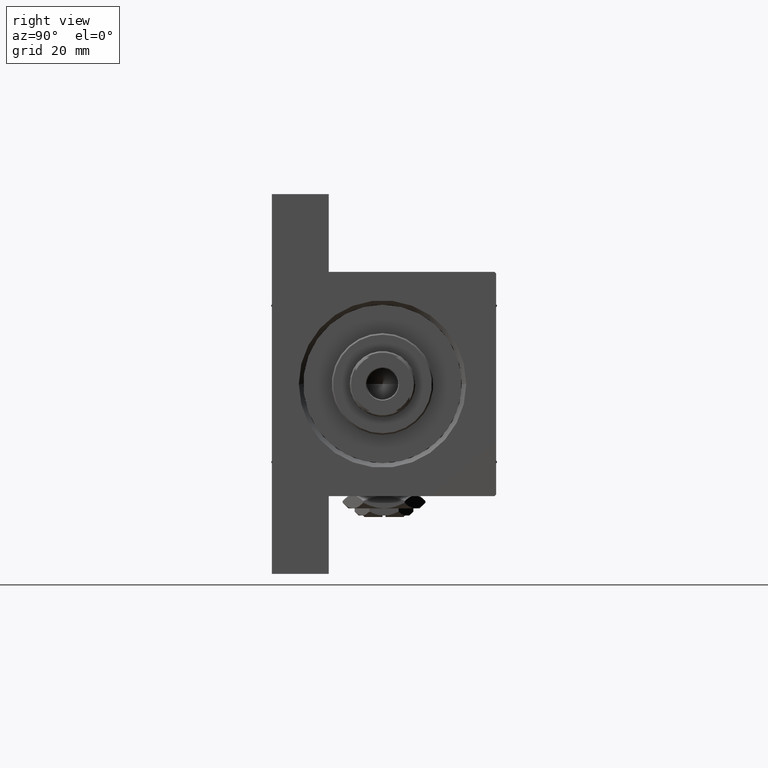
[diagram: clean part render]
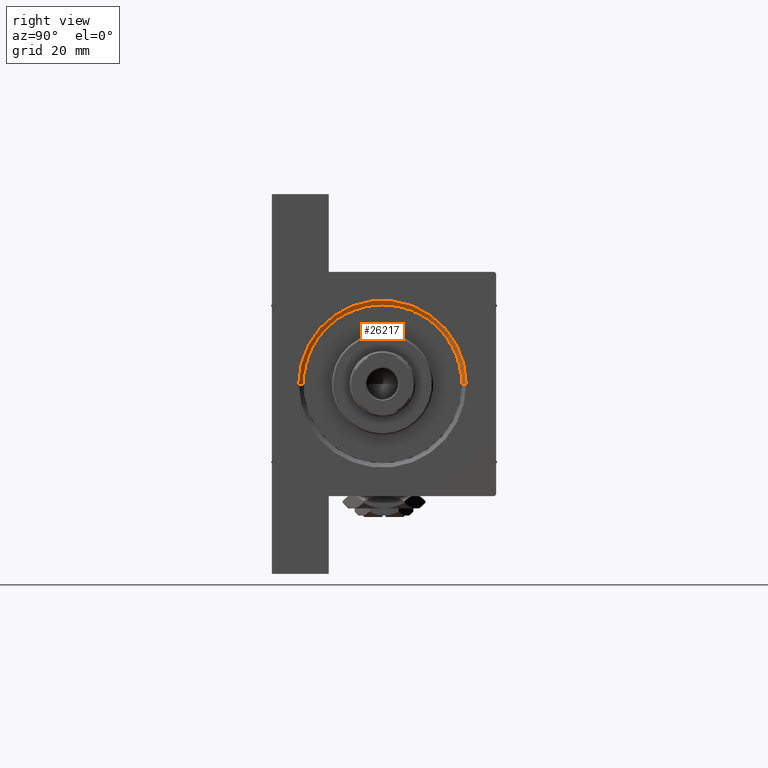
[diagram: same view with one face highlighted and labeled with its STEP entity id]
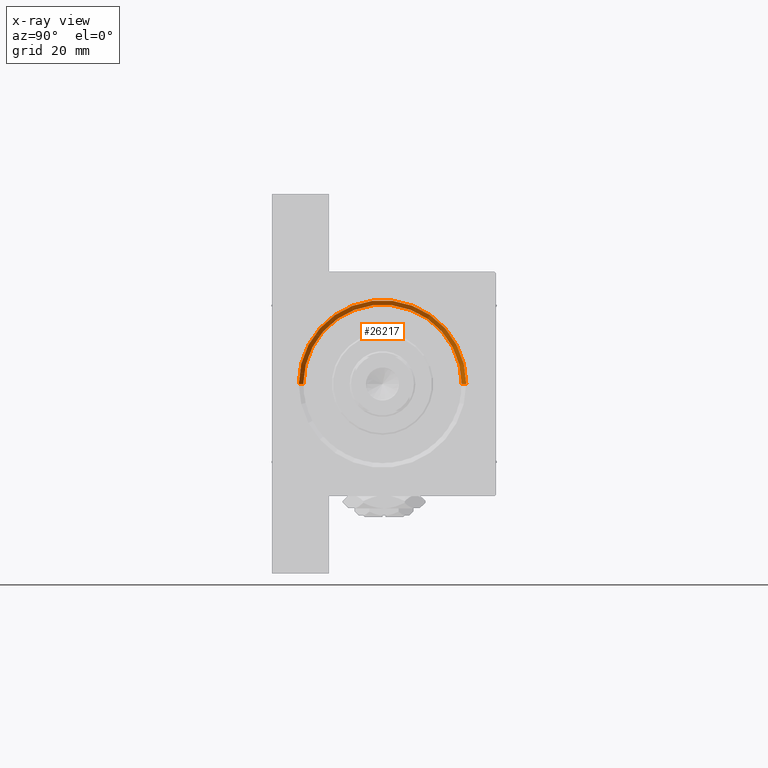
[diagram: x-ray of the same camera — body ghosted, the highlighted face saturated]
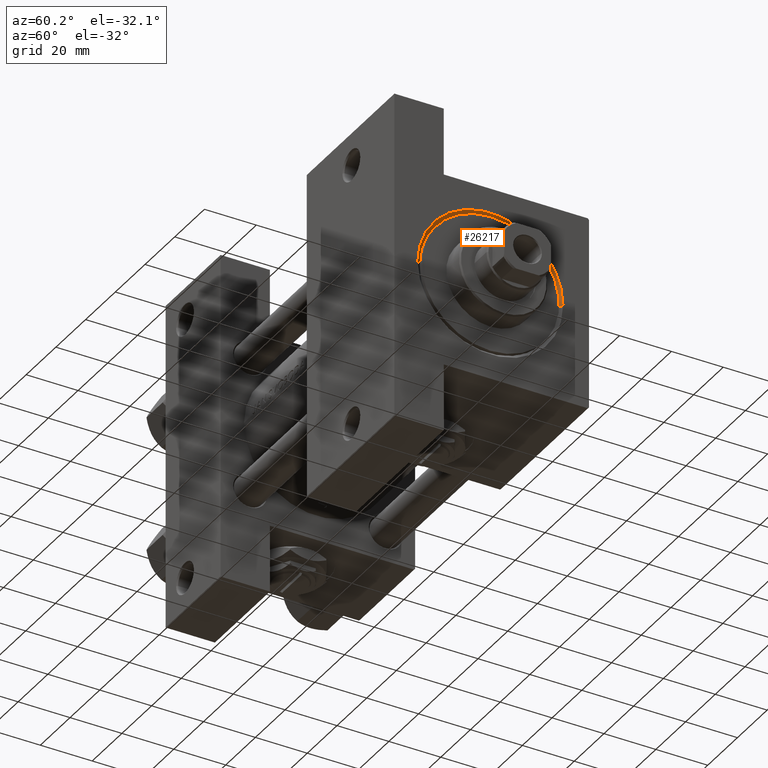
[diagram: same view with one face highlighted and labeled with its STEP entity id]
A machine part, right view. The second image highlights one B-rep face of the part: STEP entity #26217.
The next image is the same camera in x-ray: the body ghosted, the highlighted face saturated — about 0% of this face is hidden behind the body in this view.
A second angle (auxiliary view) of the same face is appended — the face is thin or edge-on in the first view.
In plain terms, the highlighted conical surface has half-angle 45 deg.
Its self-contained STEP definition (entity closure, byte-faithful):
#1871 = CARTESIAN_POINT ( 'NONE',  ( 152.5000000000000568, 0.000000000000000000, -0.5000000000000004441 ) ) ;
#3297 = CARTESIAN_POINT ( 'NONE',  ( 152.5000000000000568, 3.245314017740486554E-15, 26.00000000000000355 ) ) ;
#7060 = LINE ( 'NONE', #3297, #25974 ) ;
#7363 = VERTEX_POINT ( 'NONE', #33471 ) ;
#8380 = DIRECTION ( 'NONE',  ( -1.000000000000000000, -0.000000000000000000, 0.000000000000000000 ) ) ;
#10758 = CIRCLE ( 'NONE', #36372, 26.50000000000000355 ) ;
#11424 = DIRECTION ( 'NONE',  ( 0.7071067811865361374, 0.000000000000000000, -0.7071067811865588970 ) ) ;
#12431 = CONICAL_SURFACE ( 'NONE', #21245, 26.50000000000000355, 0.7853981633974644883 ) ;
#16637 = ORIENTED_EDGE ( 'NONE', *, *, #40904, .F. ) ;
#16805 = EDGE_CURVE ( 'NONE', #47914, #19608, #32203, .T. ) ;
#17811 = DIRECTION ( 'NONE',  ( 1.000000000000000000, 0.000000000000000000, 0.000000000000000000 ) ) ;
#17957 = CARTESIAN_POINT ( 'NONE',  ( 152.5000000000000568, 0.000000000000000000, -27.00000000000000355 ) ) ;
#19608 = VERTEX_POINT ( 'NONE', #43897 ) ;
#20567 = CARTESIAN_POINT ( 'NONE',  ( 152.5000000000000568, 0.000000000000000000, -0.5000000000000004441 ) ) ;
#20604 = EDGE_CURVE ( 'NONE', #20914, #7363, #10758, .T. ) ;
#20914 = VERTEX_POINT ( 'NONE', #45815 ) ;
#21245 = AXIS2_PLACEMENT_3D ( 'NONE', #20567, #31559, #35325 ) ;
#21830 = EDGE_CURVE ( 'NONE', #20914, #19608, #7060, .T. ) ;
#22213 = LINE ( 'NONE', #17957, #26528 ) ;
#23684 = CARTESIAN_POINT ( 'NONE',  ( 154.0000000000000000, 0.000000000000000000, -28.49999999999999645 ) ) ;
#24461 = ORIENTED_EDGE ( 'NONE', *, *, #16805, .F. ) ;
#25762 = ORIENTED_EDGE ( 'NONE', *, *, #21830, .T. ) ;
#25820 = DIRECTION ( 'NONE',  ( 0.7071067811865361374, 8.659560562355073374E-17, 0.7071067811865588970 ) ) ;
#25974 = VECTOR ( 'NONE', #25820, 1000.000000000000114 ) ;
#26217 = ADVANCED_FACE ( 'NONE', ( #43126 ), #12431, .F. ) ;
#26528 = VECTOR ( 'NONE', #11424, 1000.000000000000114 ) ;
#30393 = CARTESIAN_POINT ( 'NONE',  ( 154.0000000000000000, 0.000000000000000000, -0.5000000000000004441 ) ) ;
#30573 = AXIS2_PLACEMENT_3D ( 'NONE', #30393, #8380, #38198 ) ;
#31559 = DIRECTION ( 'NONE',  ( 1.000000000000000000, 0.000000000000000000, 0.000000000000000000 ) ) ;
#32203 = CIRCLE ( 'NONE', #30573, 27.99999999999999645 ) ;
#33076 = DIRECTION ( 'NONE',  ( 0.000000000000000000, 0.000000000000000000, 1.000000000000000000 ) ) ;
#33471 = CARTESIAN_POINT ( 'NONE',  ( 152.5000000000000568, 0.000000000000000000, -27.00000000000000355 ) ) ;
#35325 = DIRECTION ( 'NONE',  ( 0.000000000000000000, 0.000000000000000000, -1.000000000000000000 ) ) ;
#36372 = AXIS2_PLACEMENT_3D ( 'NONE', #1871, #17811, #33076 ) ;
#37128 = EDGE_LOOP ( 'NONE', ( #38588, #25762, #24461, #16637 ) ) ;
#38198 = DIRECTION ( 'NONE',  ( 0.000000000000000000, 0.000000000000000000, 1.000000000000000000 ) ) ;
#38588 = ORIENTED_EDGE ( 'NONE', *, *, #20604, .F. ) ;
#40904 = EDGE_CURVE ( 'NONE', #7363, #47914, #22213, .T. ) ;
#43126 = FACE_OUTER_BOUND ( 'NONE', #37128, .T. ) ;
#43897 = CARTESIAN_POINT ( 'NONE',  ( 154.0000000000000000, 3.429011037612588881E-15, 27.49999999999999645 ) ) ;
#45815 = CARTESIAN_POINT ( 'NONE',  ( 152.5000000000000568, 3.245314017740486554E-15, 26.00000000000000355 ) ) ;
#47914 = VERTEX_POINT ( 'NONE', #23684 ) ;